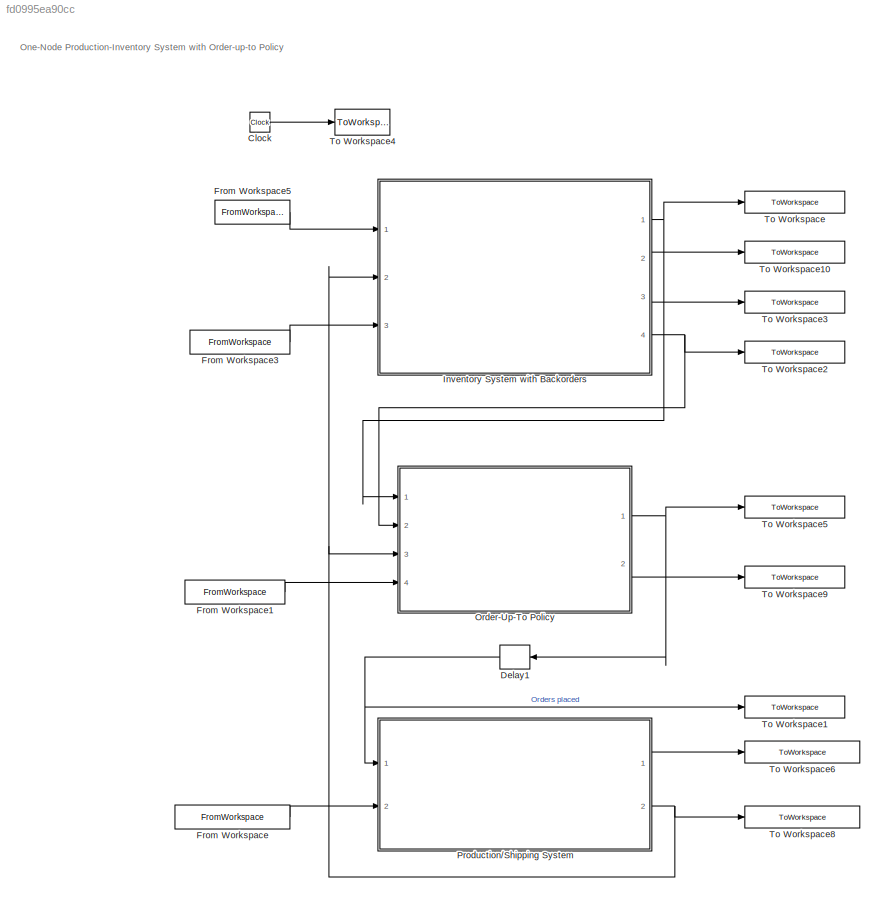
MODEL slx_fd0995ea90cc
KIND model
CONFIG AbsTol = auto
CONFIG EnableMultiTasking = off
CONFIG FixedStep = auto
CONFIG MaxStep = auto
CONFIG MinStep = auto
CONFIG RelTol = 1e-3
CONFIG SampleTimeConstraint = Unconstrained
CONFIG SolverName = VariableStepAuto
CONFIG StartTime = 0.0
CONFIG StopTime = 100
BLOCK [Clock] Clock
BLOCK [Delay] Delay1
  DelayLength = 1
  InitialCondition = 0
  InputPortMap = u0
  Ports = [1, 1]
BLOCK [FromWorkspace] From Workspace
  SampleTime = Ts
  VariableName = inputs.s2_out_adj
BLOCK [FromWorkspace] From Workspace1
  SampleTime = Ts
  VariableName = inputs.q_sl_adj
BLOCK [FromWorkspace] From Workspace3
  SampleTime = Ts
  VariableName = inputs.q1_adj
BLOCK [FromWorkspace] From Workspace5
  SampleTime = Ts
  VariableName = inputs.d1
BLOCK [SubSystem] Inventory System with Backorders
  Ports = [3, 4]
  ReferencedSubsystem = inv_sys_with_backorders
  RequestExecContextInheritance = off
  b0 = 0
  q0 = q1_init
BLOCK [SubSystem] Order-Up-To Policy
  Kq = 1
  Kq_sl = 1
  Ports = [4, 2]
  ReferencedSubsystem = order_up_to_policy
  RequestExecContextInheritance = off
  moq = 1
  q_o_init = 0
  q_sl_init = 0
  q_sl_sp = 0
  q_sp = q_sp
BLOCK [SubSystem] Production//Shipping System
  Ports = [2, 2]
  ReferencedSubsystem = prod_trans_sys
  RequestExecContextInheritance = off
  q_sl_init = q2_transit_init
  t_delay = t_delay
BLOCK [ToWorkspace] To Workspace
  FixptAsFi = on
  MaxDataPoints = inf
  Ports = [1]
  SampleTime = -1
  VariableName = d1_back
BLOCK [ToWorkspace] To Workspace1
  FixptAsFi = on
  MaxDataPoints = inf
  Ports = [1]
  SampleTime = -1
  VariableName = d2
BLOCK [ToWorkspace] To Workspace10
  FixptAsFi = on
  MaxDataPoints = inf
  Ports = [1]
  SampleTime = -1
  VariableName = q1_open
BLOCK [ToWorkspace] To Workspace2
  FixptAsFi = on
  MaxDataPoints = inf
  Ports = [1]
  SampleTime = -1
  VariableName = q1_close
BLOCK [ToWorkspace] To Workspace3
  FixptAsFi = on
  MaxDataPoints = inf
  Ports = [1]
  SampleTime = -1
  VariableName = s1_out
BLOCK [ToWorkspace] To Workspace4
  FixptAsFi = on
  MaxDataPoints = inf
  Ports = [1]
  SampleTime = -1
  VariableName = t
BLOCK [ToWorkspace] To Workspace5
  FixptAsFi = on
  MaxDataPoints = inf
  Ports = [1]
  SampleTime = -1
  VariableName = o1
BLOCK [ToWorkspace] To Workspace6
  FixptAsFi = on
  MaxDataPoints = inf
  Ports = [1]
  SampleTime = -1
  VariableName = q2_transit
BLOCK [ToWorkspace] To Workspace8
  FixptAsFi = on
  MaxDataPoints = inf
  Ports = [1]
  SampleTime = -1
  VariableName = s2_out
BLOCK [ToWorkspace] To Workspace9
  FixptAsFi = on
  MaxDataPoints = inf
  Ports = [1]
  SampleTime = -1
  VariableName = q_sl_est
ANNOTATION (root): One-Node Production-Inventory System with Order-up-to Policy
LINE Clock:1 -> To Workspace4:1
NET Delay1:1 -> Production//Shipping System:1, To Workspace1:1
LINE From Workspace1:1 -> Order-Up-To Policy:4
LINE From Workspace3:1 -> Inventory System with Backorders:3
LINE From Workspace5:1 -> Inventory System with Backorders:1
LINE From Workspace:1 -> Production//Shipping System:2
NET Inventory System with Backorders:1 -> Order-Up-To Policy:1, To Workspace:1
LINE Inventory System with Backorders:2 -> To Workspace10:1
LINE Inventory System with Backorders:3 -> To Workspace3:1
NET Inventory System with Backorders:4 -> Order-Up-To Policy:2, To Workspace2:1
NET Order-Up-To Policy:1 -> Delay1:1, To Workspace5:1
LINE Order-Up-To Policy:2 -> To Workspace9:1
LINE Production//Shipping System:1 -> To Workspace6:1
NET Production//Shipping System:2 -> Inventory System with Backorders:2, Order-Up-To Policy:3, To Workspace8:1
note: NET lines group one-source signal fan-out (src -> all destinations, sorted); 1:1 wires keep LINE
